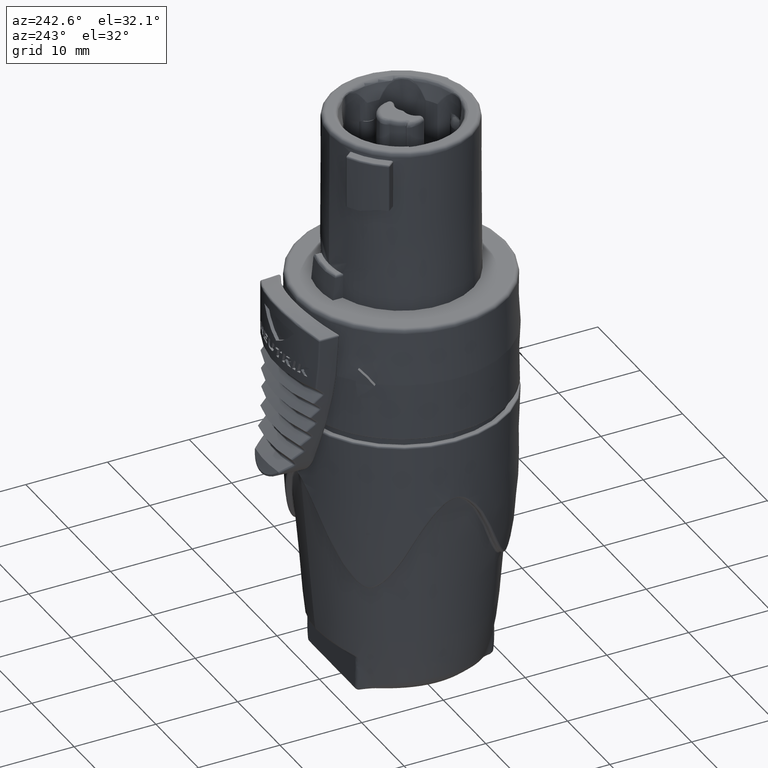
[diagram: clean part render]
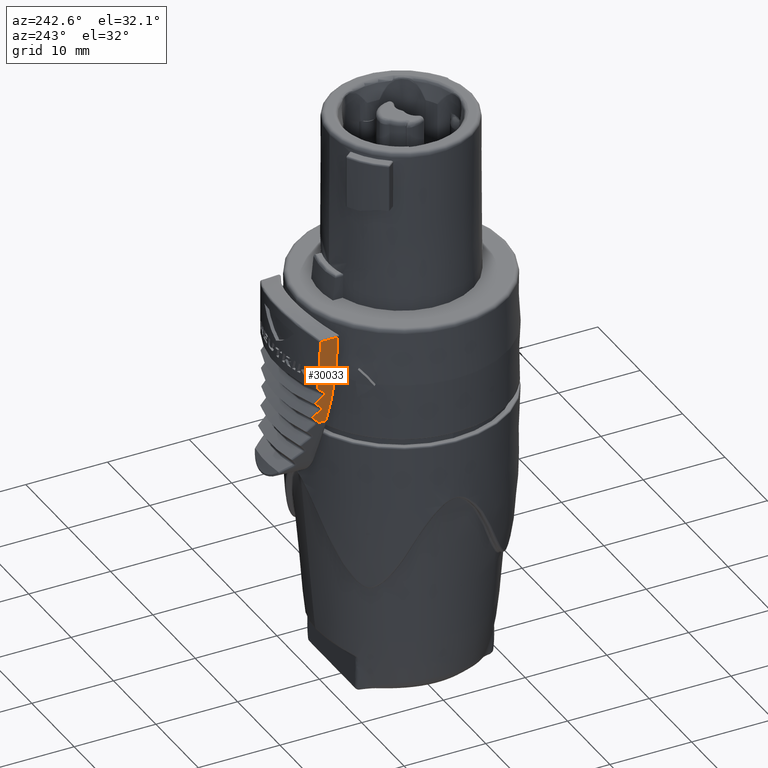
[diagram: same view with one face highlighted and labeled with its STEP entity id]
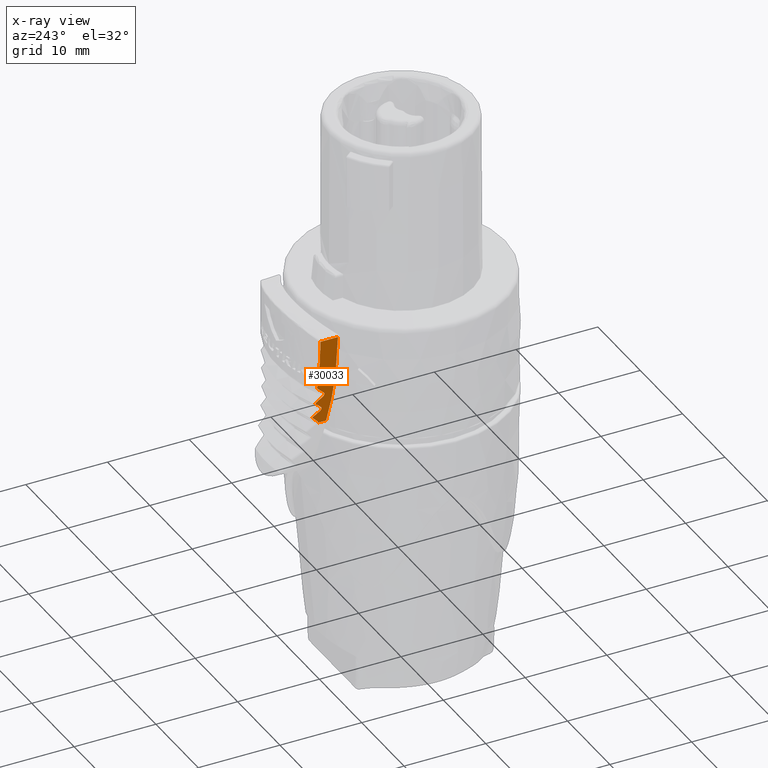
[diagram: x-ray of the same camera — body ghosted, the highlighted face saturated]
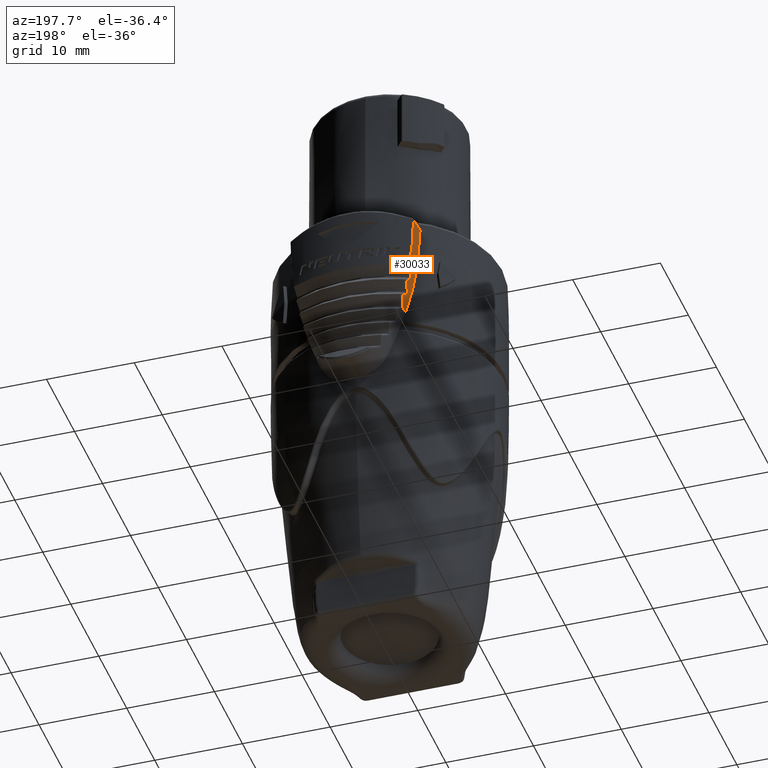
[diagram: same view with one face highlighted and labeled with its STEP entity id]
A machine part, auxiliary view. The second image highlights one B-rep face of the part: STEP entity #30033.
The next image is the same camera in x-ray: the body ghosted, the highlighted face saturated — about 0% of this face is hidden behind the body in this view.
A second angle (auxiliary view) of the same face is appended — the face is thin or edge-on in the first view.
In plain terms, the highlighted face is a freeform B-spline surface patch.
Its self-contained STEP definition (entity closure, byte-faithful):
#8960=CARTESIAN_POINT('',(-7.077229320568E0,1.139082978677E1,8.319540075777E0));
#8961=CARTESIAN_POINT('',(-7.075859182903E0,1.139166112662E1,7.581876149630E0));
#8962=CARTESIAN_POINT('',(-7.038321985597E0,1.141436048779E1,6.101393855493E0));
#8963=CARTESIAN_POINT('',(-6.875836056840E0,1.151047480827E1,3.870489582306E0));
#8964=CARTESIAN_POINT('',(-6.602434832808E0,1.166544115795E1,1.613631520843E0));
#8965=CARTESIAN_POINT('',(-6.212276165968E0,1.187214296633E1,
-6.680367307117E-1));
#8966=CARTESIAN_POINT('',(-5.871633049302E0,1.203646933758E1,
-2.199196758399E0));
#8967=CARTESIAN_POINT('',(-5.679990959040E0,1.212288856050E1,
-2.967807845266E0));
#8969=CARTESIAN_POINT('',(-5.646753665279E0,1.310360165616E1,
-2.959538259052E0));
#8970=CARTESIAN_POINT('',(-5.654594931944E0,1.310349233549E1,
-2.927571929457E0));
#8971=CARTESIAN_POINT('',(-5.669208767180E0,1.311157487060E1,
-2.866571731274E0));
#8972=CARTESIAN_POINT('',(-5.688264028237E0,1.314621039322E1,
-2.782714048937E0));
#8973=CARTESIAN_POINT('',(-5.698587614696E0,1.318311424964E1,
-2.734224614282E0));
#8974=CARTESIAN_POINT('',(-5.703151153195E0,1.320534959705E1,
-2.711858868501E0));
#8976=CARTESIAN_POINT('',(-5.703151153195E0,1.320534959705E1,
-2.711858868501E0));
#8977=CARTESIAN_POINT('',(-5.719368346817E0,1.328443771594E1,
-2.632324485017E0));
#8978=CARTESIAN_POINT('',(-5.751406704275E0,1.344291855147E1,
-2.473074755759E0));
#8979=CARTESIAN_POINT('',(-5.798274248380E0,1.368156093263E1,
-2.233644898839E0));
#8980=CARTESIAN_POINT('',(-5.828722388808E0,1.384126499323E1,
-2.073656373349E0));
#8981=CARTESIAN_POINT('',(-5.843746863491E0,1.392127059005E1,
-1.993567827794E0));
#8983=CARTESIAN_POINT('',(-5.843746863491E0,1.392127059005E1,
-1.993567827794E0));
#8984=CARTESIAN_POINT('',(-5.865698228660E0,1.382358499055E1,
-1.910931926712E0));
#8985=CARTESIAN_POINT('',(-5.908681603460E0,1.362976182616E1,
-1.747407221289E0));
#8986=CARTESIAN_POINT('',(-5.970456152343E0,1.334386672071E1,
-1.507511007877E0));
#8987=CARTESIAN_POINT('',(-6.009984288278E0,1.315611009591E1,
-1.350841590944E0));
#8988=CARTESIAN_POINT('',(-6.029342321371E0,1.306297380996E1,
-1.273347637246E0));
#8990=CARTESIAN_POINT('',(-6.029342321371E0,1.306297380996E1,
-1.273347637246E0));
#8991=CARTESIAN_POINT('',(-6.036129637214E0,1.303031865237E1,
-1.246183329758E0));
#8992=CARTESIAN_POINT('',(-6.050259610701E0,1.297588641186E1,
-1.187032825680E0));
#8993=CARTESIAN_POINT('',(-6.072964464961E0,1.292207101951E1,
-1.085098960742E0));
#8994=CARTESIAN_POINT('',(-6.095254371735E0,1.289990721503E1,
-9.783983297927E-1));
#8995=CARTESIAN_POINT('',(-6.115190718188E0,1.290850286333E1,
-8.767309875150E-1));
#8996=CARTESIAN_POINT('',(-6.132015690100E0,1.294391261274E1,
-7.849235966094E-1));
#8997=CARTESIAN_POINT('',(-6.141181172825E0,1.298518897091E1,
-7.303454370973E-1));
#8998=CARTESIAN_POINT('',(-6.145145956163E0,1.301083188318E1,
-7.052698517921E-1));
#9000=CARTESIAN_POINT('',(-6.145145956163E0,1.301083188318E1,
-7.052698517921E-1));
#9001=CARTESIAN_POINT('',(-6.157742342129E0,1.309249001653E1,
-6.254666175337E-1));
#9002=CARTESIAN_POINT('',(-6.182536012378E0,1.325602487697E1,
-4.657196641823E-1));
#9003=CARTESIAN_POINT('',(-6.218526821069E0,1.350199826481E1,
-2.256599087462E-1));
#9004=CARTESIAN_POINT('',(-6.241718143407E0,1.366641323561E1,
-6.534013006809E-2));
#9005=CARTESIAN_POINT('',(-6.253113046335E0,1.374873129513E1,
1.489277674187E-2));
#9007=CARTESIAN_POINT('',(-6.253113046335E0,1.374873129513E1,
1.489277674187E-2));
#9008=CARTESIAN_POINT('',(-6.271329533181E0,1.365081029353E1,
9.752527840402E-2));
#9009=CARTESIAN_POINT('',(-6.306937130791E0,1.345654492356E1,
2.610426881322E-1));
#9010=CARTESIAN_POINT('',(-6.357933241953E0,1.317006020536E1,
5.009331099249E-1));
#9011=CARTESIAN_POINT('',(-6.390447922896E0,1.298195806863E1,
6.576002397583E-1));
#9012=CARTESIAN_POINT('',(-6.406342821620E0,1.288865912817E1,
7.350944258582E-1));
#9014=CARTESIAN_POINT('',(-6.406342821620E0,1.288865912817E1,
7.350944258582E-1));
#9015=CARTESIAN_POINT('',(-6.408305719744E0,1.287713714361E1,
7.446646485435E-1));
#9016=CARTESIAN_POINT('',(-6.412542906595E0,1.285393482352E1,
7.657220269473E-1));
#9017=CARTESIAN_POINT('',(-6.419976841816E0,1.281952619602E1,
8.042220856034E-1));
#9018=CARTESIAN_POINT('',(-6.428625668301E0,1.278694946444E1,
8.509147340171E-1));
#9019=CARTESIAN_POINT('',(-6.438651265916E0,1.275833556520E1,
9.074498953991E-1));
#9020=CARTESIAN_POINT('',(-6.450131691405E0,1.273726330723E1,
9.753588204459E-1));
#9021=CARTESIAN_POINT('',(-6.462867124198E0,1.272940428137E1,1.054974390148E0));
#9022=CARTESIAN_POINT('',(-6.475964116986E0,1.274195155734E1,1.142561650953E0));
#9023=CARTESIAN_POINT('',(-6.487793223537E0,1.277932291738E1,1.228691484200E0));
#9024=CARTESIAN_POINT('',(-6.494018691594E0,1.281998708572E1,1.279521859874E0));
#9025=CARTESIAN_POINT('',(-6.496693087004E0,1.284490091167E1,1.303164485462E0));
#9027=CARTESIAN_POINT('',(-6.496693087004E0,1.284490091167E1,1.303164485462E0));
#9028=CARTESIAN_POINT('',(-6.512342653542E0,1.299099158700E1,1.441751939220E0));
#9029=CARTESIAN_POINT('',(-6.541875781685E0,1.327824057609E1,1.714236105412E0));
#9030=CARTESIAN_POINT('',(-6.568126172036E0,1.355562198641E1,1.977324625858E0));
#9031=CARTESIAN_POINT('',(-6.580493357323E0,1.369184391907E1,2.106516042950E0));
#9033=CARTESIAN_POINT('',(-6.580493357323E0,1.369184391907E1,2.106516042950E0));
#9034=CARTESIAN_POINT('',(-6.673649971362E0,1.364856264090E1,2.796116974741E0));
#9035=CARTESIAN_POINT('',(-6.828378802498E0,1.357452378134E1,4.171911169498E0));
#9036=CARTESIAN_POINT('',(-6.968423671281E0,1.350505481786E1,6.225116280195E0));
#9037=CARTESIAN_POINT('',(-7.001891057133E0,1.348818501077E1,7.587695524620E0));
#9038=CARTESIAN_POINT('',(-7.003904318194E0,1.348716091989E1,8.267364951276E0));
#9040=CARTESIAN_POINT('',(-7.077229320568E0,1.139082978677E1,8.319540075777E0));
#9041=CARTESIAN_POINT('',(-7.069092734426E0,1.162353023007E1,8.313755286659E0));
#9042=CARTESIAN_POINT('',(-7.052820534138E0,1.208902753718E1,8.302178269086E0));
#9043=CARTESIAN_POINT('',(-7.028374872144E0,1.278781793328E1,8.284787162051E0));
#9044=CARTESIAN_POINT('',(-7.012063684439E0,1.325399158458E1,8.273174915880E0));
#9045=CARTESIAN_POINT('',(-7.003904318194E0,1.348716091989E1,8.267364951276E0));
#9047=CARTESIAN_POINT('',(-5.679990959040E0,1.212288856050E1,
-2.967807845266E0));
#9136=CARTESIAN_POINT('',(-5.646753665279E0,1.310360165616E1,
-2.959538259052E0));
#9138=DIRECTION('',(-3.387029569953E-2,-9.993907080784E-1,-8.427079905549E-3));
#9139=VECTOR('',#9138,9.813110005256E-1);
#9140=CARTESIAN_POINT('',(-5.646753665279E0,1.310360165616E1,
-2.959538259052E0));
#9141=LINE('',#9140,#9139);
#11755=VERTEX_POINT('',#9136);
#11757=VERTEX_POINT('',#8974);
#11758=VERTEX_POINT('',#8981);
#11762=VERTEX_POINT('',#8988);
#11764=VERTEX_POINT('',#8998);
#11765=VERTEX_POINT('',#9005);
#11767=VERTEX_POINT('',#9027);
#11768=VERTEX_POINT('',#9031);
#11772=VERTEX_POINT('',#9014);
#11788=VERTEX_POINT('',#9047);
#11789=VERTEX_POINT('',#8960);
#11790=VERTEX_POINT('',#9045);
#29980=CARTESIAN_POINT('',(-7.004030683728E0,1.348709582946E1,
8.319675952441E0));
#29981=CARTESIAN_POINT('',(-7.028432163388E0,1.278832768413E1,
8.319630873034E0));
#29982=CARTESIAN_POINT('',(-7.052833643047E0,1.208955953880E1,
8.319585793628E0));
#29983=CARTESIAN_POINT('',(-7.077235122707E0,1.139079139347E1,
8.319540714221E0));
#29984=CARTESIAN_POINT('',(-7.002357351570E0,1.348796271823E1,
7.413933255333E0));
#29985=CARTESIAN_POINT('',(-7.026757963308E0,1.278919457289E1,
7.413418718899E0));
#29986=CARTESIAN_POINT('',(-7.051158575046E0,1.209042642756E1,
7.412904182465E0));
#29987=CARTESIAN_POINT('',(-7.075559186784E0,1.139165828223E1,
7.412389646032E0));
#29988=CARTESIAN_POINT('',(-6.945829659200E0,1.351722799645E1,
5.567806694377E0));
#29989=CARTESIAN_POINT('',(-6.970200951103E0,1.281845985111E1,
5.566333898374E0));
#29990=CARTESIAN_POINT('',(-6.994572243005E0,1.211969170578E1,
5.564861102370E0));
#29991=CARTESIAN_POINT('',(-7.018943534908E0,1.142092356045E1,
5.563388306367E0));
#29992=CARTESIAN_POINT('',(-6.693952243435E0,1.364388697878E1,
2.766813023383E0));
#29993=CARTESIAN_POINT('',(-6.718192866476E0,1.294511883345E1,
2.763887504646E0));
#29994=CARTESIAN_POINT('',(-6.742433489517E0,1.224635068812E1,
2.760961985908E0));
#29995=CARTESIAN_POINT('',(-6.766674112558E0,1.154758254279E1,
2.758036467171E0));
#29996=CARTESIAN_POINT('',(-6.262362550922E0,1.384763048990E1,
-8.127883077165E-2));
#29997=CARTESIAN_POINT('',(-6.286379363374E0,1.314886234457E1,
-8.568159709669E-2));
#29998=CARTESIAN_POINT('',(-6.310396175826E0,1.245009419924E1,
-9.008436342172E-2));
#29999=CARTESIAN_POINT('',(-6.334412988278E0,1.175132605391E1,
-9.448712974675E-2));
#30000=CARTESIAN_POINT('',(-5.850894501331E0,1.402333774115E1,
-1.992459579811E0));
#30001=CARTESIAN_POINT('',(-5.874697662010E0,1.332456959582E1,
-1.997854549112E0));
#30002=CARTESIAN_POINT('',(-5.898500822689E0,1.262580145049E1,
-2.003249518413E0));
#30003=CARTESIAN_POINT('',(-5.922303983368E0,1.192703330516E1,
-2.008644487714E0));
#30004=CARTESIAN_POINT('',(-5.612406834789E0,1.411729068948E1,
-2.950992582131E0));
#30005=CARTESIAN_POINT('',(-5.636086431658E0,1.341852254415E1,
-2.956884180843E0));
#30006=CARTESIAN_POINT('',(-5.659766028527E0,1.271975439882E1,
-2.962775779555E0));
#30007=CARTESIAN_POINT('',(-5.683445625397E0,1.202098625349E1,
-2.968667378267E0));
#30008=B_SPLINE_SURFACE_WITH_KNOTS('',3,3,((#29980,#29981,#29982,#29983),
(#29984,#29985,#29986,#29987),(#29988,#29989,#29990,#29991),(#29992,#29993,
#29994,#29995),(#29996,#29997,#29998,#29999),(#30000,#30001,#30002,#30003),(
#30004,#30005,#30006,#30007)),.UNSPECIFIED.,.F.,.F.,.F.,(4,1,1,1,4),(4,4),(
1.335546556808E-2,2.542332125085E-1,5.028221416723E-1,7.514110708362E-1,1.E0),(
3.841618316689E-2,7.224887498116E-1),.UNSPECIFIED.);
#30009=ORIENTED_EDGE('',*,*,#29544,.T.);
#30011=ORIENTED_EDGE('',*,*,#30010,.F.);
#30013=ORIENTED_EDGE('',*,*,#30012,.T.);
#30015=ORIENTED_EDGE('',*,*,#30014,.T.);
#30017=ORIENTED_EDGE('',*,*,#30016,.T.);
#30019=ORIENTED_EDGE('',*,*,#30018,.T.);
#30021=ORIENTED_EDGE('',*,*,#30020,.T.);
#30023=ORIENTED_EDGE('',*,*,#30022,.T.);
#30025=ORIENTED_EDGE('',*,*,#30024,.T.);
#30027=ORIENTED_EDGE('',*,*,#30026,.T.);
#30029=ORIENTED_EDGE('',*,*,#30028,.T.);
#30030=ORIENTED_EDGE('',*,*,#29971,.F.);
#30031=EDGE_LOOP('',(#30009,#30011,#30013,#30015,#30017,#30019,#30021,#30023,
#30025,#30027,#30029,#30030));
#30032=FACE_OUTER_BOUND('',#30031,.F.);
#30033=ADVANCED_FACE('',(#30032),#30008,.T.);
#8968=B_SPLINE_CURVE_WITH_KNOTS('',3,(#8960,#8961,#8962,#8963,#8964,#8965,#8966,
#8967),.UNSPECIFIED.,.F.,.F.,(4,1,1,1,1,4),(0.E0,2.E-1,4.E-1,6.E-1,8.E-1,1.E0),
.UNSPECIFIED.);
#8975=B_SPLINE_CURVE_WITH_KNOTS('',3,(#8969,#8970,#8971,#8972,#8973,#8974),
.UNSPECIFIED.,.F.,.F.,(4,1,1,4),(0.E0,3.333333333333E-1,6.666666666667E-1,1.E0),
.UNSPECIFIED.);
#8982=B_SPLINE_CURVE_WITH_KNOTS('',3,(#8976,#8977,#8978,#8979,#8980,#8981),
.UNSPECIFIED.,.F.,.F.,(4,1,1,4),(0.E0,3.333333333333E-1,6.666666666667E-1,1.E0),
.UNSPECIFIED.);
#8989=B_SPLINE_CURVE_WITH_KNOTS('',3,(#8983,#8984,#8985,#8986,#8987,#8988),
.UNSPECIFIED.,.F.,.F.,(4,1,1,4),(0.E0,3.333333333333E-1,6.666666666667E-1,1.E0),
.UNSPECIFIED.);
#8999=B_SPLINE_CURVE_WITH_KNOTS('',3,(#8990,#8991,#8992,#8993,#8994,#8995,#8996,
#8997,#8998),.UNSPECIFIED.,.F.,.F.,(4,1,1,1,1,1,4),(0.E0,1.666666666667E-1,
3.333333333333E-1,5.E-1,6.666666666667E-1,8.333333333333E-1,1.E0),
.UNSPECIFIED.);
#9006=B_SPLINE_CURVE_WITH_KNOTS('',3,(#9000,#9001,#9002,#9003,#9004,#9005),
.UNSPECIFIED.,.F.,.F.,(4,1,1,4),(0.E0,3.333333333333E-1,6.666666666667E-1,1.E0),
.UNSPECIFIED.);
#9013=B_SPLINE_CURVE_WITH_KNOTS('',3,(#9007,#9008,#9009,#9010,#9011,#9012),
.UNSPECIFIED.,.F.,.F.,(4,1,1,4),(0.E0,3.333333333333E-1,6.666666666667E-1,1.E0),
.UNSPECIFIED.);
#9026=B_SPLINE_CURVE_WITH_KNOTS('',3,(#9014,#9015,#9016,#9017,#9018,#9019,#9020,
#9021,#9022,#9023,#9024,#9025),.UNSPECIFIED.,.F.,.F.,(4,1,1,1,1,1,1,1,1,4),
(0.E0,1.111111111111E-1,2.222222222222E-1,3.333333333333E-1,4.444444444444E-1,
5.555555555556E-1,6.666666666667E-1,7.777777777778E-1,8.888888888889E-1,1.E0),
.UNSPECIFIED.);
#9032=B_SPLINE_CURVE_WITH_KNOTS('',3,(#9027,#9028,#9029,#9030,#9031),
.UNSPECIFIED.,.F.,.F.,(4,1,4),(0.E0,5.E-1,1.E0),.UNSPECIFIED.);
#9039=B_SPLINE_CURVE_WITH_KNOTS('',3,(#9033,#9034,#9035,#9036,#9037,#9038),
.UNSPECIFIED.,.F.,.F.,(4,1,1,4),(0.E0,3.333333333333E-1,6.666666666667E-1,1.E0),
.UNSPECIFIED.);
#9046=B_SPLINE_CURVE_WITH_KNOTS('',3,(#9040,#9041,#9042,#9043,#9044,#9045),
.UNSPECIFIED.,.F.,.F.,(4,1,1,4),(0.E0,3.333333333333E-1,6.666666666667E-1,1.E0),
.UNSPECIFIED.);
#29544=EDGE_CURVE('',#11789,#11788,#8968,.T.);
#29971=EDGE_CURVE('',#11789,#11790,#9046,.T.);
#30010=EDGE_CURVE('',#11755,#11788,#9141,.T.);
#30012=EDGE_CURVE('',#11755,#11757,#8975,.T.);
#30014=EDGE_CURVE('',#11757,#11758,#8982,.T.);
#30016=EDGE_CURVE('',#11758,#11762,#8989,.T.);
#30018=EDGE_CURVE('',#11762,#11764,#8999,.T.);
#30020=EDGE_CURVE('',#11764,#11765,#9006,.T.);
#30022=EDGE_CURVE('',#11765,#11772,#9013,.T.);
#30024=EDGE_CURVE('',#11772,#11767,#9026,.T.);
#30026=EDGE_CURVE('',#11767,#11768,#9032,.T.);
#30028=EDGE_CURVE('',#11768,#11790,#9039,.T.);